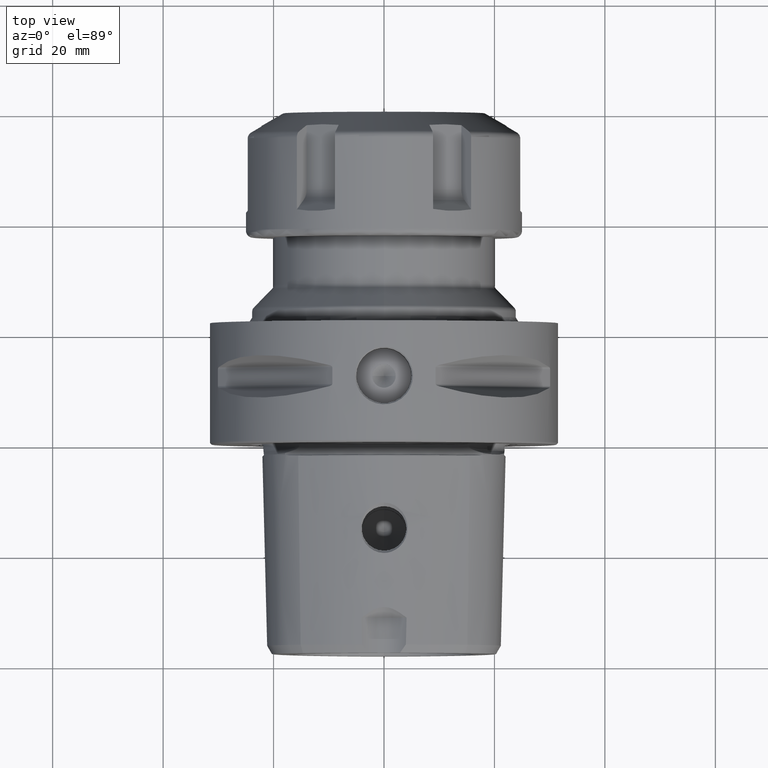
[diagram: clean part render]
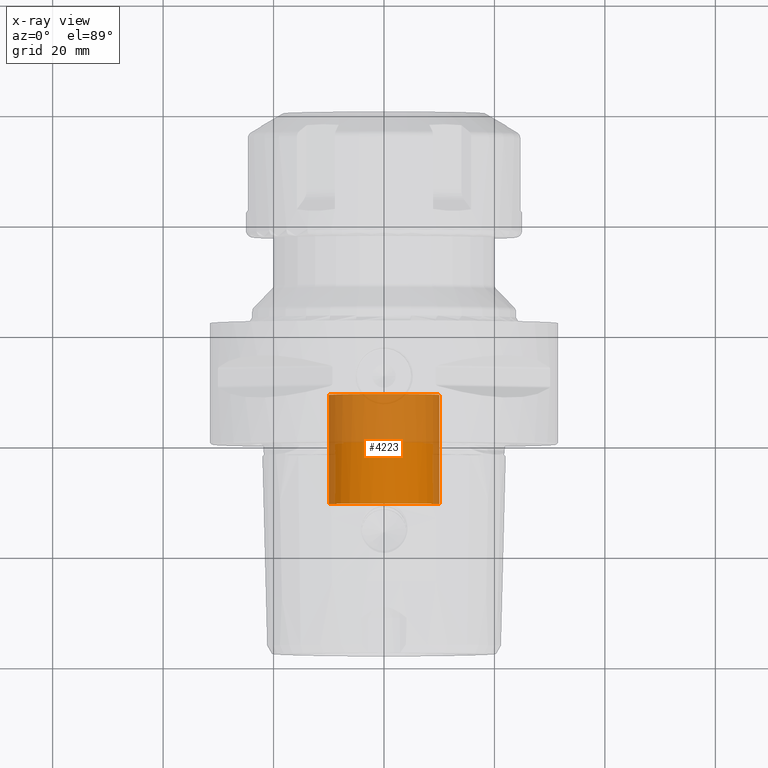
[diagram: x-ray — body ghosted, one internal face saturated and labeled with its STEP entity id]
A machine part, top view, then the same camera in x-ray: the body is ghosted and one INTERNAL B-rep face — a face not visible from any outside direction — is saturated and labeled: STEP entity #4223.
In plain terms, the highlighted cylindrical surface (partial cylindrical patch) has radius 10 mm, axis along (0, 1, 0).
Its self-contained STEP definition (entity closure, byte-faithful):
#4125=CARTESIAN_POINT('',(0.E0,9.E0,0.E0));
#4126=DIRECTION('',(0.E0,1.E0,0.E0));
#4127=DIRECTION('',(-1.E0,0.E0,0.E0));
#4128=AXIS2_PLACEMENT_3D('',#4125,#4126,#4127);
#4145=CARTESIAN_POINT('',(0.E0,-1.080816825301E1,0.E0));
#4146=DIRECTION('',(0.E0,-1.E0,0.E0));
#4147=DIRECTION('',(0.E0,0.E0,1.E0));
#4148=AXIS2_PLACEMENT_3D('',#4145,#4146,#4147);
#4150=DIRECTION('',(0.E0,1.E0,0.E0));
#4151=VECTOR('',#4150,1.980816825301E1);
#4152=CARTESIAN_POINT('',(-1.E1,-1.080816825301E1,0.E0));
#4153=LINE('',#4152,#4151);
#4154=CARTESIAN_POINT('',(0.E0,-1.080816825301E1,0.E0));
#4155=DIRECTION('',(0.E0,-1.E0,0.E0));
#4156=DIRECTION('',(1.E0,0.E0,0.E0));
#4157=AXIS2_PLACEMENT_3D('',#4154,#4155,#4156);
#4169=DIRECTION('',(0.E0,1.E0,0.E0));
#4170=VECTOR('',#4169,1.980816825301E1);
#4171=CARTESIAN_POINT('',(1.E1,-1.080816825301E1,0.E0));
#4172=LINE('',#4171,#4170);
#4173=CARTESIAN_POINT('',(-1.E1,9.E0,0.E0));
#4174=CARTESIAN_POINT('',(1.E1,9.E0,0.E0));
#4175=VERTEX_POINT('',#4173);
#4176=VERTEX_POINT('',#4174);
#4177=CARTESIAN_POINT('',(-1.E1,-1.080816825301E1,0.E0));
#4178=CARTESIAN_POINT('',(0.E0,-1.080816825301E1,1.E1));
#4179=VERTEX_POINT('',#4177);
#4180=VERTEX_POINT('',#4178);
#4181=CARTESIAN_POINT('',(1.E1,-1.080816825301E1,0.E0));
#4182=VERTEX_POINT('',#4181);
#4207=CARTESIAN_POINT('',(0.E0,-4.4E1,0.E0));
#4208=DIRECTION('',(0.E0,1.E0,0.E0));
#4209=DIRECTION('',(-1.E0,0.E0,0.E0));
#4210=AXIS2_PLACEMENT_3D('',#4207,#4208,#4209);
#4211=CYLINDRICAL_SURFACE('',#4210,1.E1);
#4213=ORIENTED_EDGE('',*,*,#4212,.T.);
#4215=ORIENTED_EDGE('',*,*,#4214,.T.);
#4216=ORIENTED_EDGE('',*,*,#4194,.T.);
#4218=ORIENTED_EDGE('',*,*,#4217,.F.);
#4220=ORIENTED_EDGE('',*,*,#4219,.T.);
#4221=EDGE_LOOP('',(#4213,#4215,#4216,#4218,#4220));
#4222=FACE_OUTER_BOUND('',#4221,.F.);
#4223=ADVANCED_FACE('',(#4222),#4211,.T.);
#4129=CIRCLE('',#4128,1.E1);
#4149=CIRCLE('',#4148,1.E1);
#4158=CIRCLE('',#4157,1.E1);
#4194=EDGE_CURVE('',#4175,#4176,#4129,.T.);
#4212=EDGE_CURVE('',#4180,#4179,#4149,.T.);
#4214=EDGE_CURVE('',#4179,#4175,#4153,.T.);
#4217=EDGE_CURVE('',#4182,#4176,#4172,.T.);
#4219=EDGE_CURVE('',#4182,#4180,#4158,.T.);